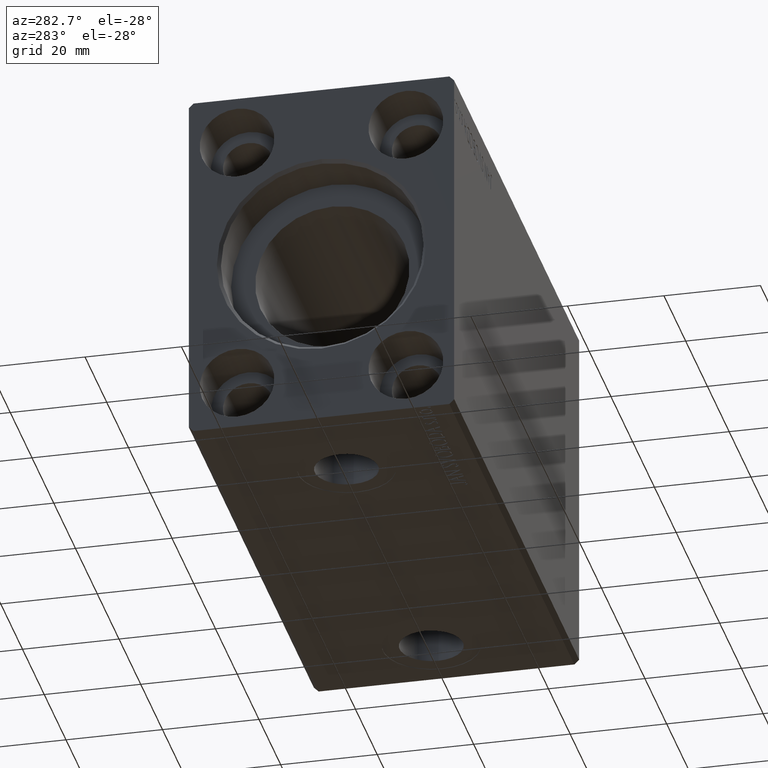
[diagram: clean part render]
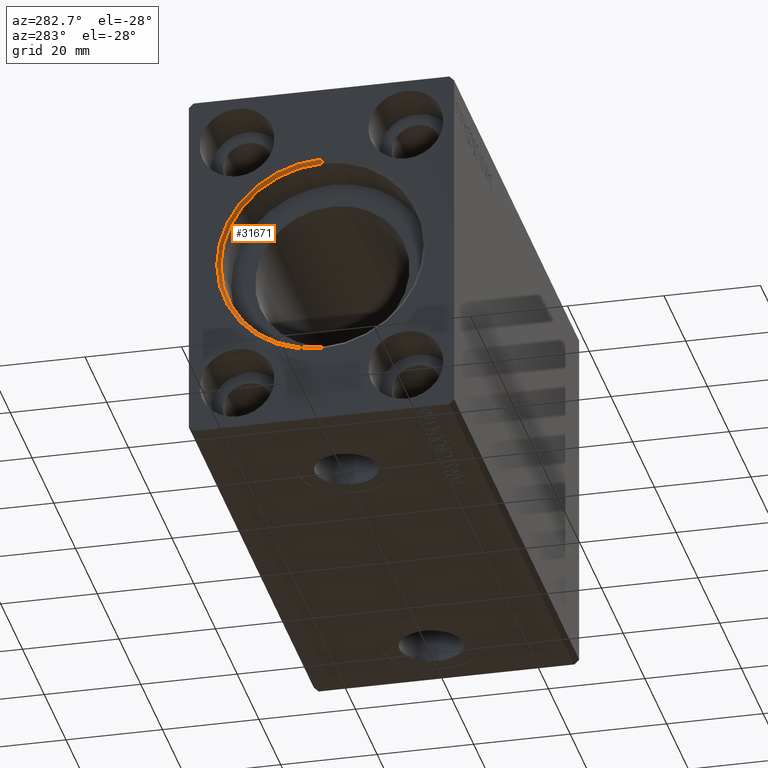
[diagram: same view with one face highlighted and labeled with its STEP entity id]
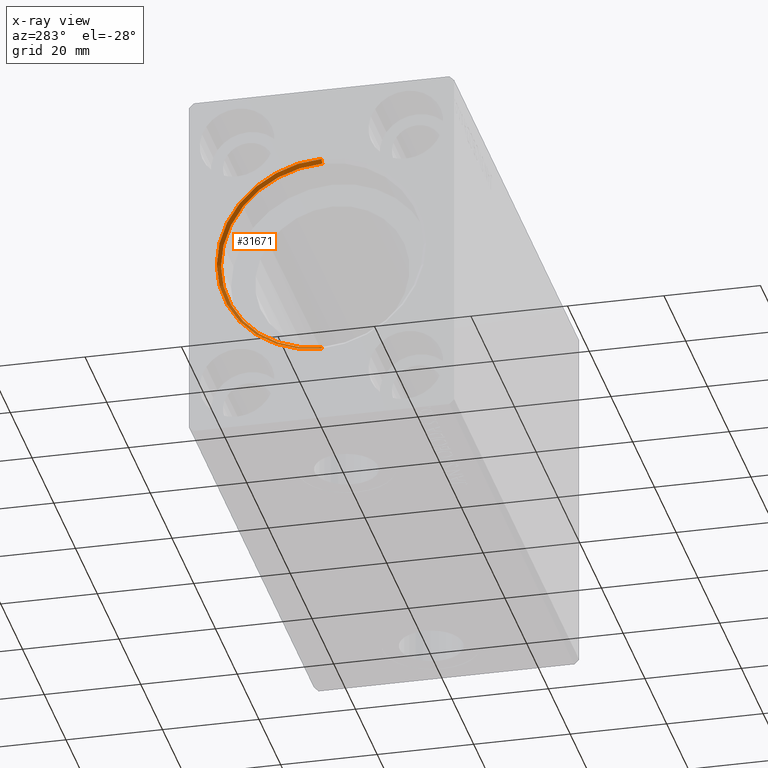
[diagram: x-ray of the same camera — body ghosted, the highlighted face saturated]
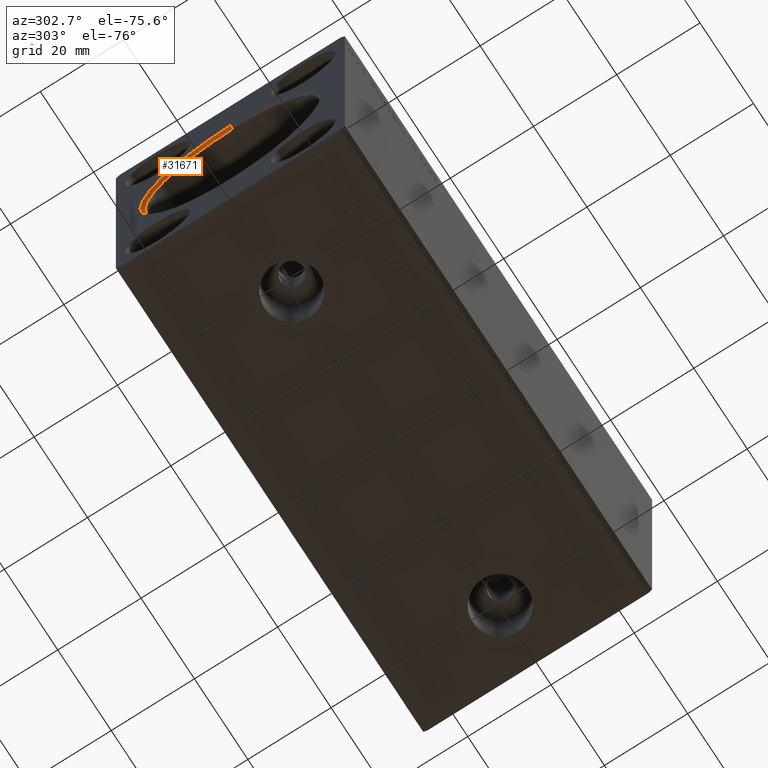
[diagram: same view with one face highlighted and labeled with its STEP entity id]
A machine part, auxiliary view. The second image highlights one B-rep face of the part: STEP entity #31671.
The next image is the same camera in x-ray: the body ghosted, the highlighted face saturated — about 0% of this face is hidden behind the body in this view.
A second angle (auxiliary view) of the same face is appended — the face is thin or edge-on in the first view.
In plain terms, the highlighted conical surface has half-angle 45 deg.
Its self-contained STEP definition (entity closure, byte-faithful):
#123 = VECTOR ( 'NONE', #34352, 1000.000000000000000 ) ;
#1318 = VERTEX_POINT ( 'NONE', #20678 ) ;
#3023 = DIRECTION ( 'NONE',  ( 1.000000000000000000, 0.000000000000000000, 0.000000000000000000 ) ) ;
#3395 = EDGE_CURVE ( 'NONE', #9708, #1318, #7066, .T. ) ;
#3433 = CARTESIAN_POINT ( 'NONE',  ( 0.7000000000000443645, 0.000000000000000000, 0.000000000000000000 ) ) ;
#6479 = DIRECTION ( 'NONE',  ( -1.000000000000000000, 0.000000000000000000, 0.000000000000000000 ) ) ;
#7066 = CIRCLE ( 'NONE', #9805, 21.70000000000003837 ) ;
#7156 = ORIENTED_EDGE ( 'NONE', *, *, #16408, .T. ) ;
#7860 = CARTESIAN_POINT ( 'NONE',  ( 0.7000000000000443645, 0.000000000000000000, 21.00000000000000000 ) ) ;
#8998 = CARTESIAN_POINT ( 'NONE',  ( 0.7000000000000443645, 2.571758278209441661E-15, -21.00000000000000000 ) ) ;
#9708 = VERTEX_POINT ( 'NONE', #28077 ) ;
#9805 = AXIS2_PLACEMENT_3D ( 'NONE', #28875, #3023, #35566 ) ;
#10467 = AXIS2_PLACEMENT_3D ( 'NONE', #26329, #19007, #19445 ) ;
#10642 = VERTEX_POINT ( 'NONE', #29118 ) ;
#11995 = ORIENTED_EDGE ( 'NONE', *, *, #35949, .F. ) ;
#13236 = CARTESIAN_POINT ( 'NONE',  ( 0.7000000000000443645, 2.571758278209441661E-15, -21.00000000000000000 ) ) ;
#14806 = ORIENTED_EDGE ( 'NONE', *, *, #16639, .F. ) ;
#15286 = CIRCLE ( 'NONE', #10467, 21.00000000000000000 ) ;
#15833 = ORIENTED_EDGE ( 'NONE', *, *, #3395, .F. ) ;
#16408 = EDGE_CURVE ( 'NONE', #10642, #1318, #37581, .T. ) ;
#16639 = EDGE_CURVE ( 'NONE', #10642, #31955, #15286, .T. ) ;
#17974 = AXIS2_PLACEMENT_3D ( 'NONE', #3433, #6479, #26297 ) ;
#19007 = DIRECTION ( 'NONE',  ( -1.000000000000000000, 0.000000000000000000, 0.000000000000000000 ) ) ;
#19445 = DIRECTION ( 'NONE',  ( 0.000000000000000000, 0.000000000000000000, -1.000000000000000000 ) ) ;
#20678 = CARTESIAN_POINT ( 'NONE',  ( 0.000000000000000000, 0.000000000000000000, 21.70000000000003837 ) ) ;
#21425 = CONICAL_SURFACE ( 'NONE', #17974, 21.00000000000000000, 0.7853981633974432830 ) ;
#21448 = VECTOR ( 'NONE', #42540, 1000.000000000000000 ) ;
#26297 = DIRECTION ( 'NONE',  ( 0.000000000000000000, 0.000000000000000000, 1.000000000000000000 ) ) ;
#26329 = CARTESIAN_POINT ( 'NONE',  ( 0.7000000000000443645, 0.000000000000000000, 0.000000000000000000 ) ) ;
#26388 = LINE ( 'NONE', #13236, #21448 ) ;
#28077 = CARTESIAN_POINT ( 'NONE',  ( 0.000000000000000000, 2.657483554149761471E-15, -21.70000000000003837 ) ) ;
#28875 = CARTESIAN_POINT ( 'NONE',  ( 0.000000000000000000, 0.000000000000000000, 0.000000000000000000 ) ) ;
#29118 = CARTESIAN_POINT ( 'NONE',  ( 0.7000000000000443645, 0.000000000000000000, 21.00000000000000000 ) ) ;
#31671 = ADVANCED_FACE ( 'NONE', ( #40069 ), #21425, .F. ) ;
#31955 = VERTEX_POINT ( 'NONE', #8998 ) ;
#34161 = EDGE_LOOP ( 'NONE', ( #11995, #14806, #7156, #15833 ) ) ;
#34352 = DIRECTION ( 'NONE',  ( -0.7071067811865511255, 0.000000000000000000, 0.7071067811865440200 ) ) ;
#35566 = DIRECTION ( 'NONE',  ( 0.000000000000000000, 0.000000000000000000, -1.000000000000000000 ) ) ;
#35949 = EDGE_CURVE ( 'NONE', #31955, #9708, #26388, .T. ) ;
#37581 = LINE ( 'NONE', #7860, #123 ) ;
#40069 = FACE_OUTER_BOUND ( 'NONE', #34161, .T. ) ;
#42540 = DIRECTION ( 'NONE',  ( -0.7071067811865511255, 8.659560562354889717E-17, -0.7071067811865440200 ) ) ;